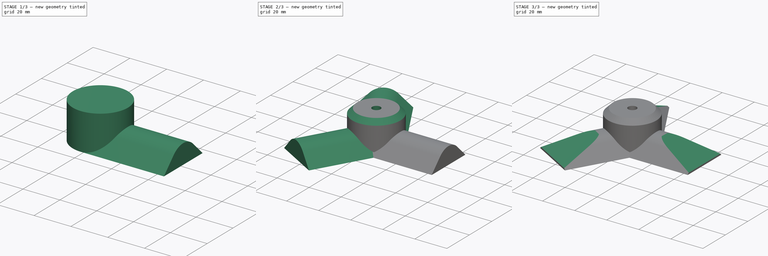
[diagram: build sequence overview — one tinted view per stage of 3, left to right]
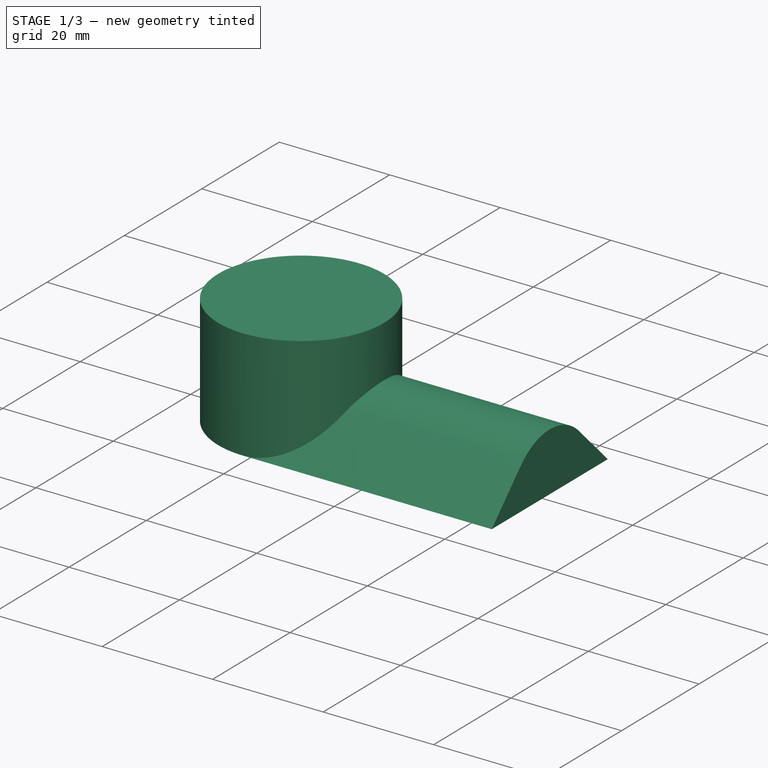
[diagram: stage 1 of 3 — iso view after this stage's code; geometry added in this stage tinted green]
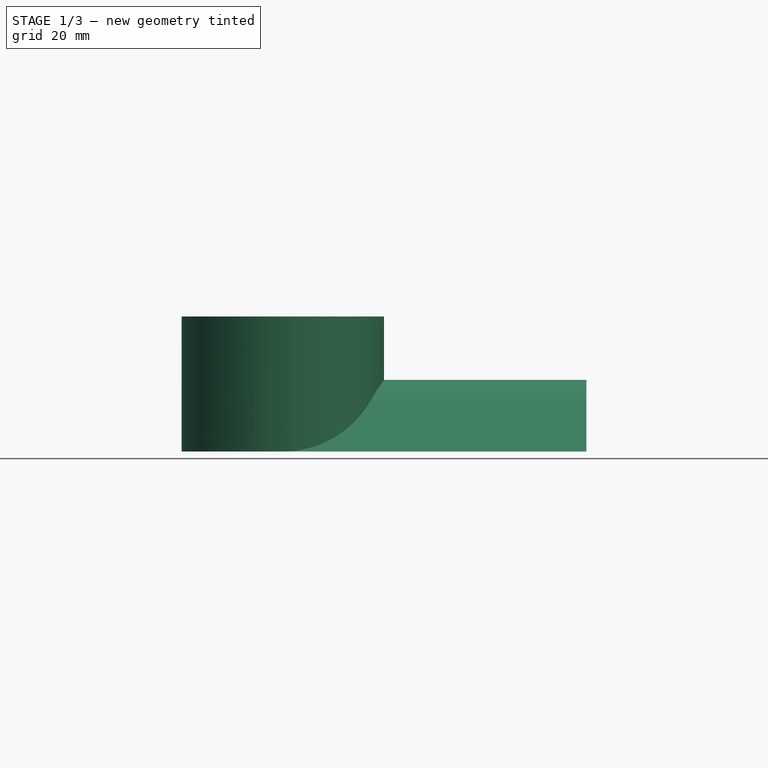
[diagram: stage 1 of 3 — front view after this stage's code; geometry added in this stage tinted green]
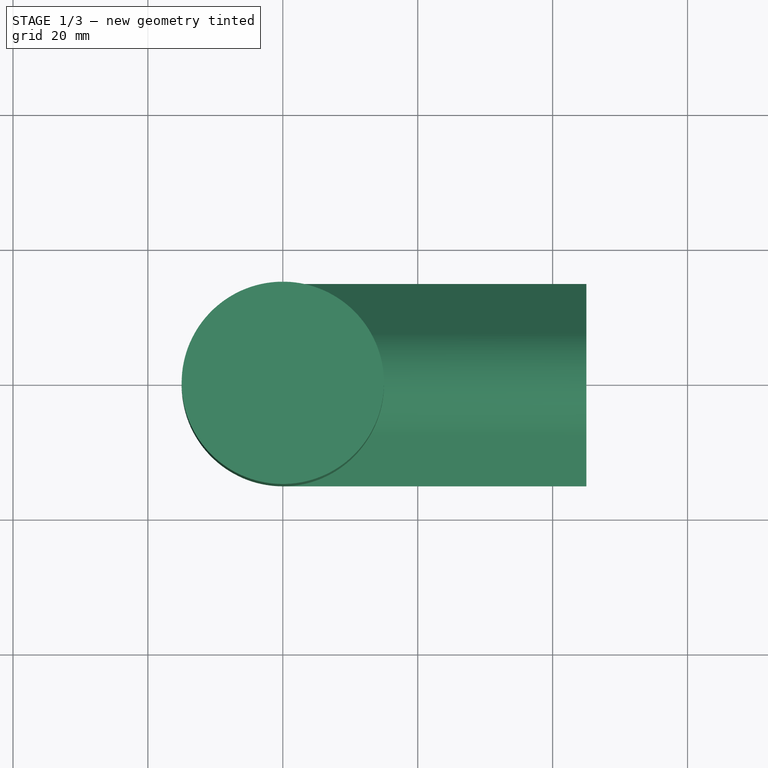
[diagram: stage 1 of 3 — top view after this stage's code; geometry added in this stage tinted green]
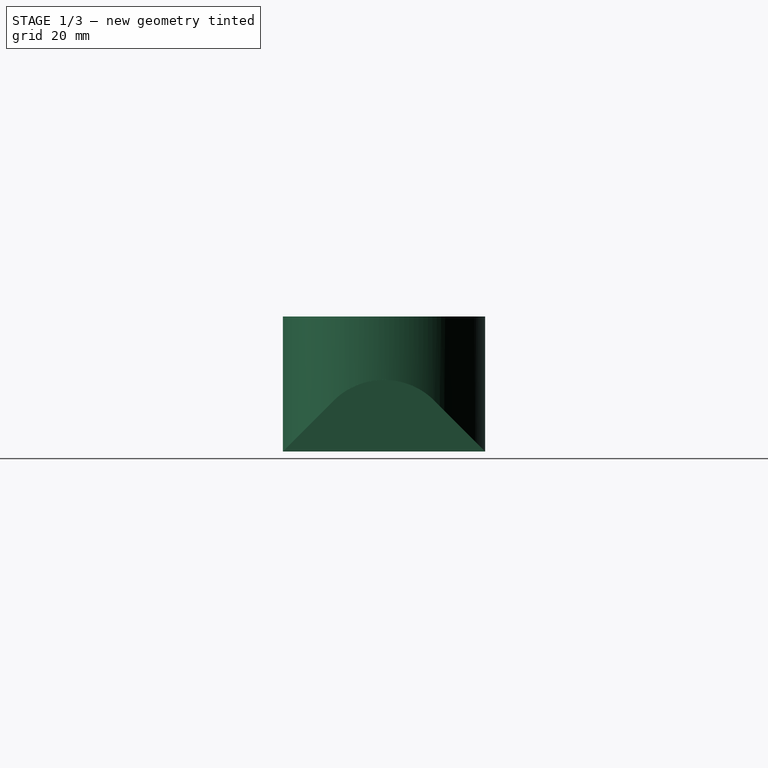
[diagram: stage 1 of 3 — right view after this stage's code; geometry added in this stage tinted green]
FCSTD DOCUMENT  (FreeCAD 0.19R24276 (Git))
Label: pulpropeller
License: All rights reserved
LicenseURL: http://en.wikipedia.org/wiki/All_rights_reserved
objects: TechDraw::DrawProjGroupItem×9, Sketcher::SketchObject×4, PartDesign::Pad×2, PartDesign::PolarPattern×2, PartDesign::Chamfer×1, PartDesign::SubtractiveCylinder×1, PartDesign::Pocket×1, PartDesign::Body×1, TechDraw::DrawSVGTemplate×1, TechDraw::DrawProjGroup×1, TechDraw::DrawPage×1
note: 17 computed .brp shape members not serialized (recipe doc carries the construction recipe); baked Part::Feature solids carry a one-line shape summary decoded from their .brp

FEATURE [Sketcher::SketchObject] Sketch
  FullyConstrained = true
  MapMode = 5
  Support = -> [XY_Plane]
  sketch-geometry (1):
    g0: Circle CenterX=0 CenterY=0 CenterZ=0 NormalX=0 NormalY=0 NormalZ=1 AngleXU=0 Radius=15
  constraints (2):
    c: Radius(g0) = 15
    c: Coincident(g0,g-1)
FEATURE [PartDesign::Pad] Pad
  Direction = (1,1,1)
  Length = 20
  Length2 = 100
  Profile = -> Sketch
  Type = 0
FEATURE [Sketcher::SketchObject] Sketch001
  FullyConstrained = true
  MapMode = 5
  Placement = pos=(0,0,0) rot=(0.57735,0.57735,0.57735;2.0944rad)
  Support = -> [YZ_Plane]
  sketch-geometry (4):
    g0: LineSegment StartX=-15 StartY=0 StartZ=0 EndX=-7.5 EndY=7.5 EndZ=0
    g1: LineSegment StartX=7.5 StartY=7.5 StartZ=0 EndX=15 EndY=0 EndZ=0
    g2: LineSegment StartX=15 StartY=0 StartZ=0 EndX=-15 EndY=0 EndZ=0
    g3: ArcOfCircle CenterX=0 CenterY=0 CenterZ=0 NormalX=0 NormalY=0 NormalZ=1 AngleXU=0 Radius=10.6066 StartAngle=0.785398 EndAngle=2.35619
  constraints (10):
    c: PointOnObject(g0,g-1)
    c: PointOnObject(g1,g-1)
    c: Coincident(g1,g2)
    c: Coincident(g2,g0)
    c: Tangent(g0,g3) = 1.5708
    c: Tangent(g1,g3) = 1.5708
    c: Angle(g2,g0) = 0.785398
    c: Angle(g1,g2) = 0.785398
    c: DistanceX(g2,g2) = 30
    c: Coincident(g3,g-1)
FEATURE [PartDesign::Pad] Pad001
  BaseFeature = -> Pad
  Direction = (1,1,1)
  Length = 45
  Length2 = 100
  Profile = -> Sketch001
  Type = 0
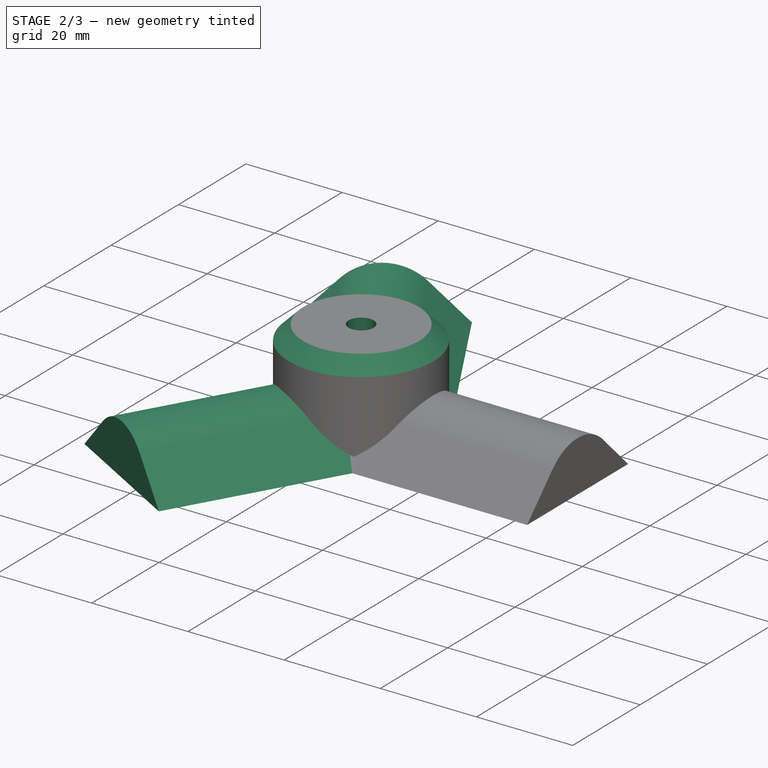
[diagram: stage 2 of 3 — iso view after this stage's code; geometry added in this stage tinted green]
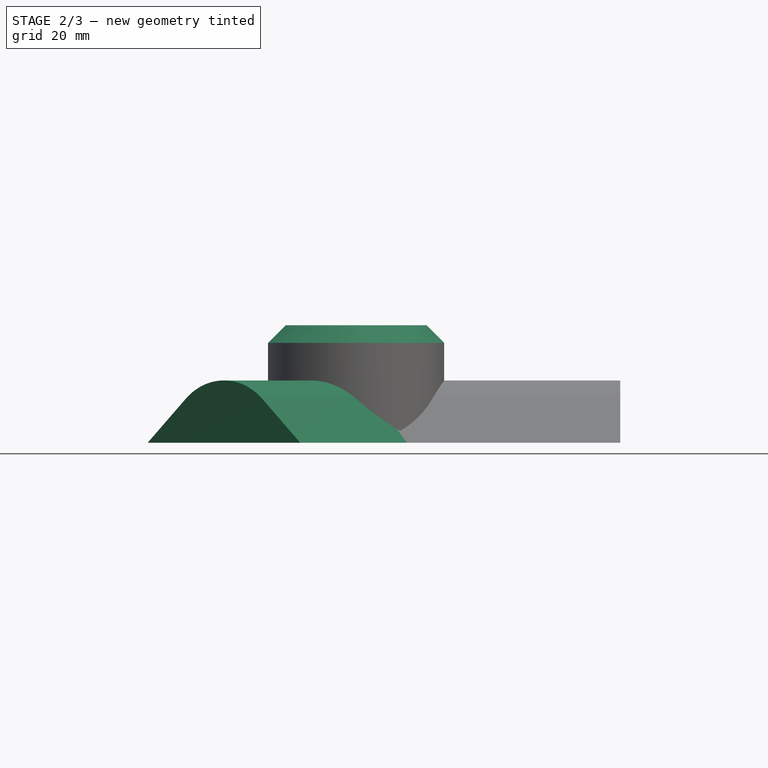
[diagram: stage 2 of 3 — front view after this stage's code; geometry added in this stage tinted green]
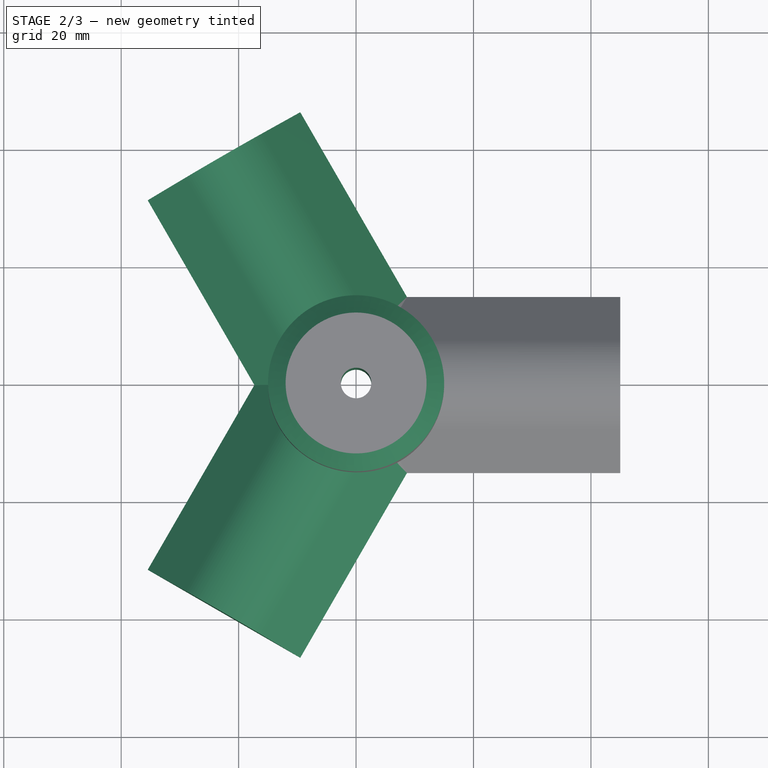
[diagram: stage 2 of 3 — top view after this stage's code; geometry added in this stage tinted green]
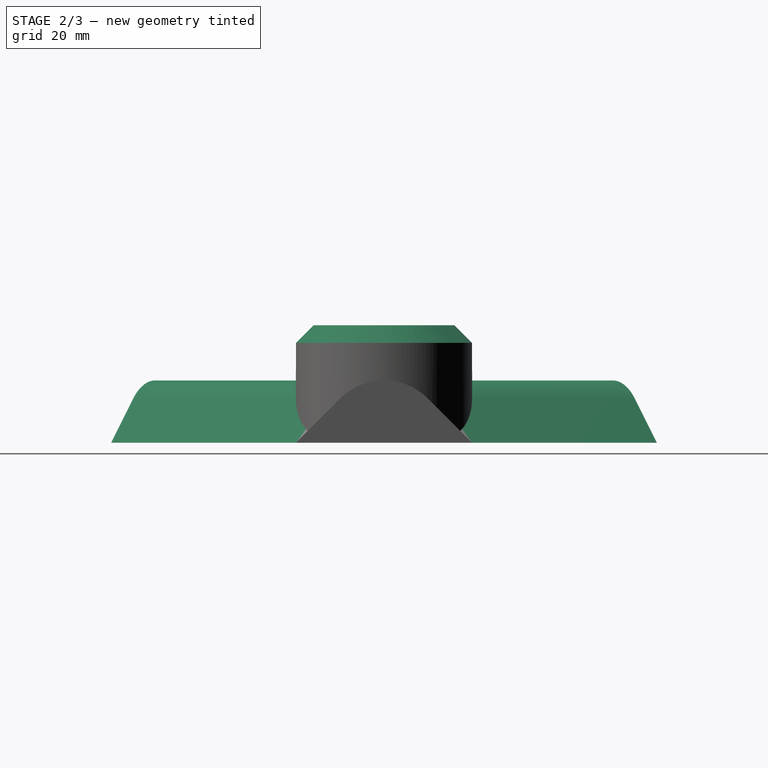
[diagram: stage 2 of 3 — right view after this stage's code; geometry added in this stage tinted green]
FEATURE [PartDesign::PolarPattern] PolarPattern
  Angle = 360
  Axis = -> Z_Axis
  BaseFeature = -> Pad001
  Occurrences = 3
  Originals = -> [Pad001]
  Refine = true
FEATURE [PartDesign::Chamfer] Chamfer
  Angle = 45
  Base = -> PolarPattern [Edge31]
  BaseFeature = -> PolarPattern
  ChamferType = 0
  FlipDirection = false
  Size = 3
  Size2 = 1
  SupportTransform = false
FEATURE [PartDesign::SubtractiveCylinder] Cylinder  label="inner_cilinder"
  Angle = 360
  AttacherType = Attacher::AttachEngine3D
  BaseFeature = -> Chamfer
  Height = 30
  MapMode = 5
  Radius = 2.6
  Support = -> [XY_Plane]
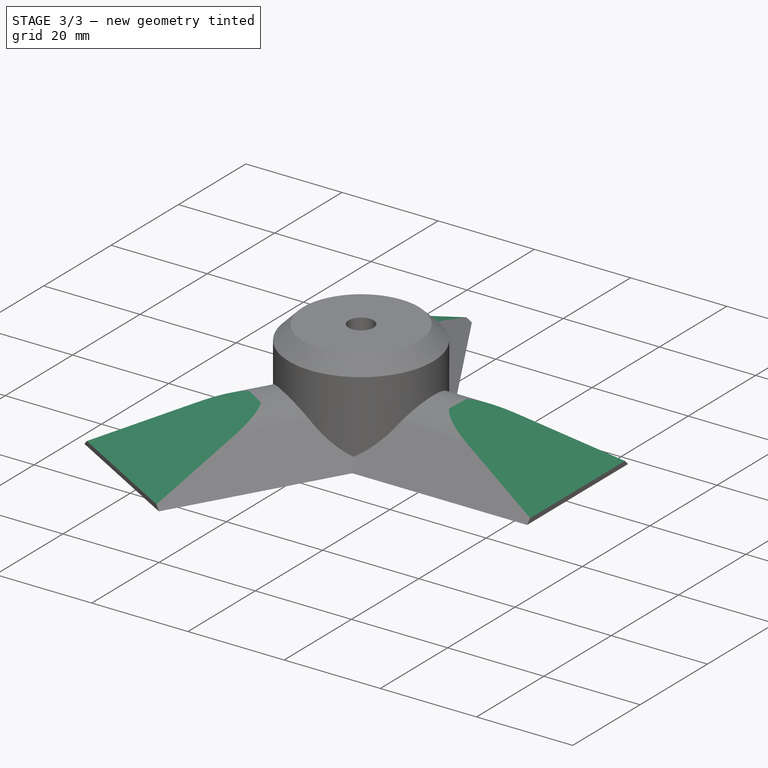
[diagram: stage 3 of 3 — iso view after this stage's code; geometry added in this stage tinted green]
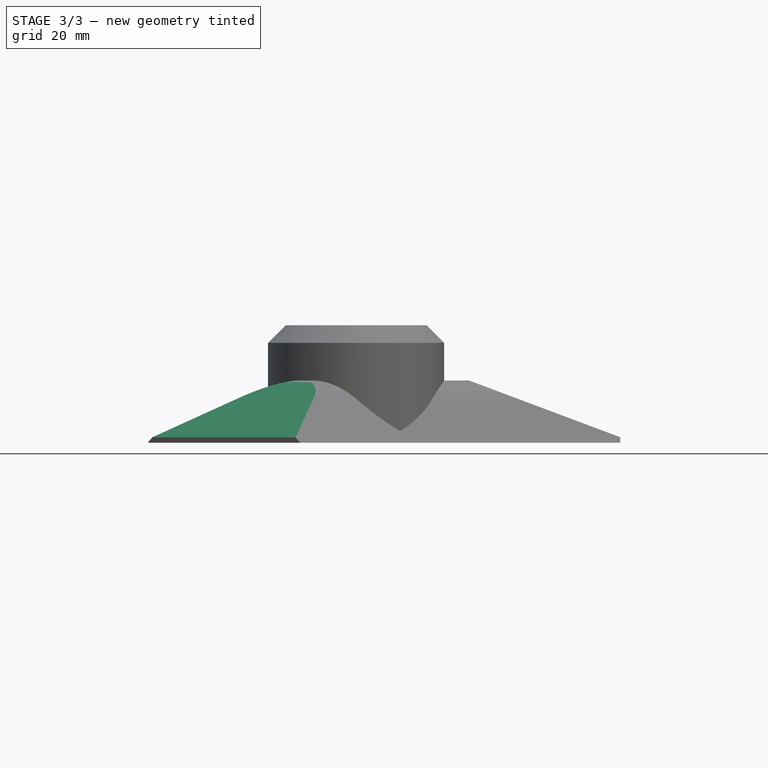
[diagram: stage 3 of 3 — front view after this stage's code; geometry added in this stage tinted green]
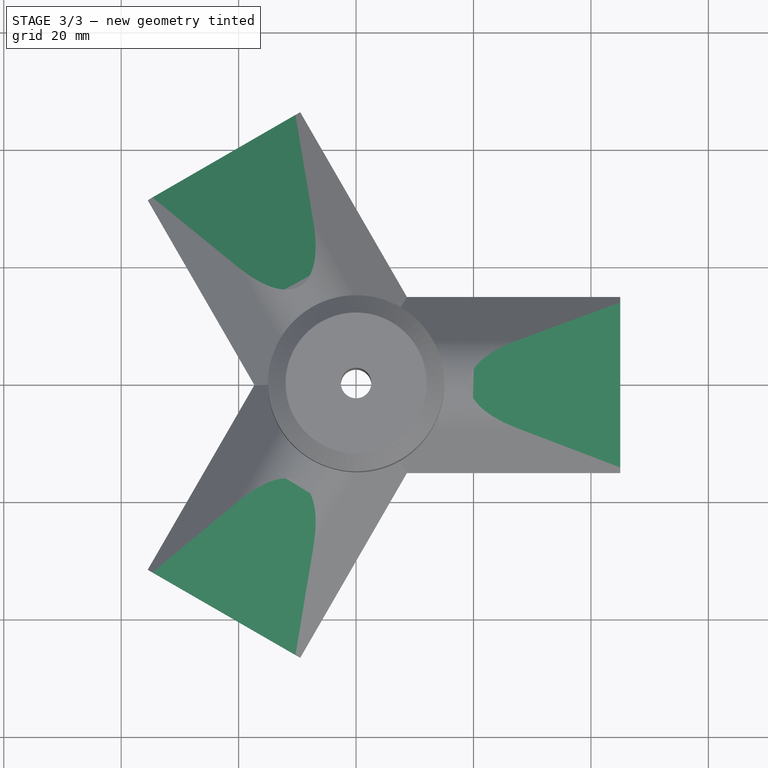
[diagram: stage 3 of 3 — top view after this stage's code; geometry added in this stage tinted green]
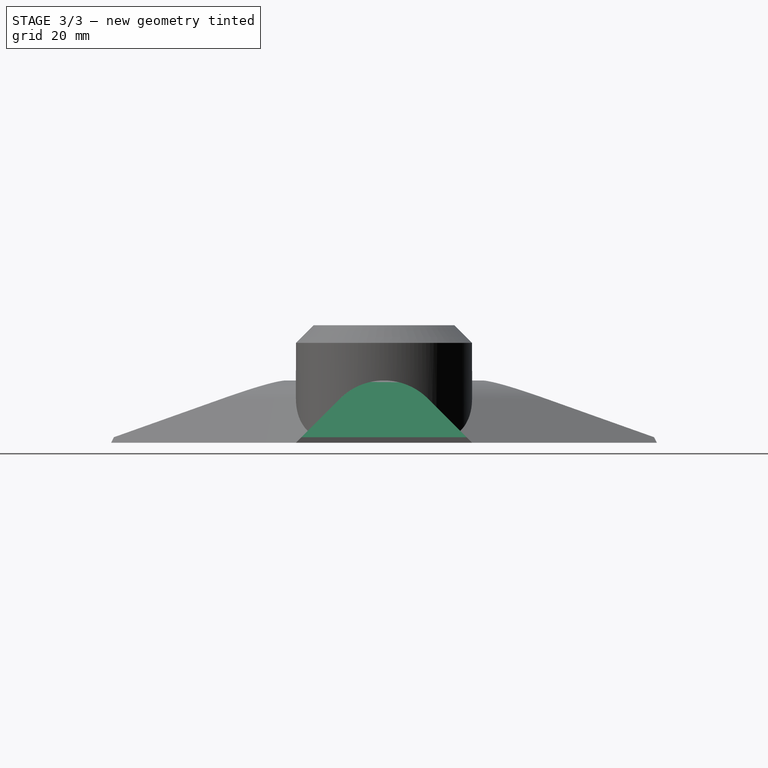
[diagram: stage 3 of 3 — right view after this stage's code; geometry added in this stage tinted green]
FEATURE [Sketcher::SketchObject] Sketch002
  FullyConstrained = true
  MapMode = 5
  Placement = pos=(0,0,0) rot=(1,0,0;1.5708rad)
  Support = -> [XZ_Plane]
  sketch-geometry (3):
    g0: LineSegment StartX=15.5 StartY=12 StartZ=0 EndX=47.5 EndY=0 EndZ=0
    g1: LineSegment StartX=47.5 StartY=0 StartZ=0 EndX=47.5 EndY=12 EndZ=0
    g2: LineSegment StartX=47.5 StartY=12 StartZ=0 EndX=15.5 EndY=12 EndZ=0
  constraints (9):
    c: PointOnObject(g0,g-1)
    c: Coincident(g0,g1)
    c: Vertical(g1)
    c: Coincident(g1,g2)
    c: Horizontal(g2)
    c: DistanceY(g1,g1) = 12
    c: Coincident(g0,g2)
    c: DistanceX(g2,g2) = 32
    c: DistanceX(g-1,g0) = 15.5
FEATURE [PartDesign::Pocket] Pocket
  BaseFeature = -> Cylinder
  Length = 30
  Length2 = 100
  Midplane = true
  Profile = -> Sketch002
  Type = 0
FEATURE [PartDesign::PolarPattern] PolarPattern001
  Angle = 360
  Axis = -> Z_Axis
  BaseFeature = -> Pocket
  Occurrences = 3
  Originals = -> [Pocket]
FEATURE [Sketcher::SketchObject] Sketch003
  FullyConstrained = true
  MapMode = 5
  Support = -> [XY_Plane]
  sketch-geometry (6):
    g0: LineSegment StartX=15.5 StartY=-15 StartZ=0 EndX=37.9553 EndY=-8.98311 EndZ=0
    g1: LineSegment StartX=37.9553 StartY=8.98311 StartZ=0 EndX=15.5 EndY=15 EndZ=0
    g2: LineSegment StartX=15.5 StartY=15 StartZ=0 EndX=55.5 EndY=15 EndZ=0
    g3: LineSegment StartX=55.5 StartY=15 StartZ=0 EndX=55.5 EndY=-15 EndZ=0
    g4: LineSegment StartX=55.5 StartY=-15 StartZ=0 EndX=15.5 EndY=-15 EndZ=0
    g5: ArcOfCircle CenterX=35.5483 CenterY=0 CenterZ=0 NormalX=0 NormalY=0 NormalZ=1 AngleXU=0 Radius=9.3 StartAngle=4.97419 EndAngle=7.59218
  constraints (17):
    c: Coincident(g1,g2)
    c: Horizontal(g2)
    c: Coincident(g2,g3)
    c: Vertical(g3)
    c: Coincident(g3,g4)
    c: Coincident(g4,g0)
    c: Horizontal(g4)
    c: Tangent(g1,g5) = -1.5708
    c: Tangent(g0,g5) = -1.5708
    c: Angle(g1,g2) = 0.261799
    c: Angle(g4,g0) = 0.261799
    c: DistanceY(g3,g3) = 30
    c: Equal(g2,g4)
    c: PointOnObject(g5,g-1)
    c: DistanceX(g2,g2) = 40
    c: Radius(g5) = 9.3
    c: DistanceX(g-1,g1) = 15.5
FEATURE [PartDesign::Body] Body
  Group = -> [Sketch,Pad,Sketch001,Pad001,PolarPattern,Chamfer,Cylinder,Sketch002,Pocket,PolarPattern001,Sketch003]
  Origin = -> Origin
  Tip = -> PolarPattern001
FEATURE [TechDraw::DrawSVGTemplate] Template_PolarPattern001
  Height = 210
  Orientation = 1
  Width = 297
FEATURE [TechDraw::DrawProjGroupItem] ProjItem  label="Front"
  CoarseView = false
  Direction = (0,-1,0)
  Focus = 100
  HardHidden = false
  IsoCount = 0
  IsoHidden = false
  IsoVisible = false
  LockPosition = true
  Perspective = false
  Rotation = 0
  RotationVector = (1,0,0)
  Scale = 0.5
  ScaleType = 2
  SeamHidden = false
  SeamVisible = true
  SmoothHidden = false
  SmoothVisible = true
  Source = -> [PolarPattern001]
  Type = 0
  X = 0
  XDirection = (1,0,0)
  Y = 0
FEATURE [TechDraw::DrawProjGroupItem] ProjItem001  label="Right"
  CoarseView = false
  Direction = (1,-1e-16,0)
  Focus = 100
  HardHidden = false
  IsoCount = 0
  IsoHidden = false
  IsoVisible = false
  LockPosition = false
  Perspective = false
  Rotation = 0
  RotationVector = (1,0,0)
  Scale = 0.5
  ScaleType = 2
  SeamHidden = false
  SeamVisible = true
  SmoothHidden = false
  SmoothVisible = true
  Source = -> [PolarPattern001]
  Type = 2
  X = -61.4711
  XDirection = (1e-16,1,0)
  Y = 0
FEATURE [TechDraw::DrawProjGroupItem] ProjItem002  label="Top"
  CoarseView = false
  Direction = (0,0,1)
  Focus = 100
  HardHidden = false
  IsoCount = 0
  IsoHidden = false
  IsoVisible = false
  LockPosition = false
  Perspective = false
  Rotation = 0
  RotationVector = (1,0,0)
  Scale = 0.5
  ScaleType = 2
  SeamHidden = false
  SeamVisible = true
  SmoothHidden = false
  SmoothVisible = true
  Source = -> [PolarPattern001]
  Type = 4
  X = 0
  XDirection = (1,0,0)
  Y = -61.4711
FEATURE [TechDraw::DrawProjGroupItem] ProjItem003  label="Left"
  CoarseView = false
  Direction = (-1,-1e-16,0)
  Focus = 100
  HardHidden = false
  IsoCount = 0
  IsoHidden = false
  IsoVisible = false
  LockPosition = false
  Perspective = false
  Rotation = 0
  RotationVector = (1,0,0)
  Scale = 0.5
  ScaleType = 2
  SeamHidden = false
  SeamVisible = true
  SmoothHidden = false
  SmoothVisible = true
  Source = -> [PolarPattern001]
  Type = 1
  X = 61.4711
  XDirection = (1e-16,-1,0)
  Y = 0
FEATURE [TechDraw::DrawProjGroupItem] ProjItem004  label="Bottom"
  CoarseView = false
  Direction = (0,0,-1)
  Focus = 100
  HardHidden = false
  IsoCount = 0
  IsoHidden = false
  IsoVisible = false
  LockPosition = false
  Perspective = false
  Rotation = 0
  RotationVector = (1,0,0)
  Scale = 0.5
  ScaleType = 2
  SeamHidden = false
  SeamVisible = true
  SmoothHidden = false
  SmoothVisible = true
  Source = -> [PolarPattern001]
  Type = 5
  X = 0
  XDirection = (1,0,0)
  Y = 61.4711
FEATURE [TechDraw::DrawProjGroupItem] ProjItem005  label="FrontBottomLeft"
  CoarseView = false
  Direction = (-0.57735,-0.57735,-0.57735)
  Focus = 100
  HardHidden = false
  IsoCount = 0
  IsoHidden = false
  IsoVisible = false
  LockPosition = false
  Perspective = false
  Rotation = 0
  RotationVector = (1,0,0)
  Scale = 0.5
  ScaleType = 2
  SeamHidden = false
  SeamVisible = true
  SmoothHidden = false
  SmoothVisible = true
  Source = -> [PolarPattern001]
  Type = 8
  X = 60.6794
  XDirection = (0.707107,-0.707107,0)
  Y = 51.3499
FEATURE [TechDraw::DrawProjGroupItem] ProjItem006  label="FrontTopRight"
  CoarseView = false
  Direction = (0.57735,-0.57735,0.57735)
  Focus = 100
  HardHidden = false
  IsoCount = 0
  IsoHidden = false
  IsoVisible = false
  LockPosition = false
  Perspective = false
  Rotation = 0
  RotationVector = (1,0,0)
  Scale = 0.5
  ScaleType = 2
  SeamHidden = false
  SeamVisible = true
  SmoothHidden = false
  SmoothVisible = true
  Source = -> [PolarPattern001]
  Type = 7
  X = -60.6794
  XDirection = (0.707107,0.707107,0)
  Y = -71.5924
FEATURE [TechDraw::DrawProjGroupItem] ProjItem007  label="FrontTopLeft"
  CoarseView = false
  Direction = (-0.57735,-0.57735,0.57735)
  Focus = 100
  HardHidden = false
  IsoCount = 0
  IsoHidden = false
  IsoVisible = false
  LockPosition = false
  Perspective = false
  Rotation = 0
  RotationVector = (1,0,0)
  Scale = 0.5
  ScaleType = 2
  SeamHidden = false
  SeamVisible = true
  SmoothHidden = false
  SmoothVisible = true
  Source = -> [PolarPattern001]
  Type = 6
  X = 60.6794
  XDirection = (0.707107,-0.707107,0)
  Y = -71.6531
FEATURE [TechDraw::DrawProjGroupItem] ProjItem008  label="FrontBottomRight"
  CoarseView = false
  Direction = (0.57735,-0.57735,-0.57735)
  Focus = 100
  HardHidden = false
  IsoCount = 0
  IsoHidden = false
  IsoVisible = false
  LockPosition = false
  Perspective = false
  Rotation = 0
  RotationVector = (1,0,0)
  Scale = 0.5
  ScaleType = 2
  SeamHidden = false
  SeamVisible = true
  SmoothHidden = false
  SmoothVisible = true
  Source = -> [PolarPattern001]
  Type = 9
  X = -60.6794
  XDirection = (0.707107,0.707107,0)
  Y = 51.2892
FEATURE [TechDraw::DrawProjGroup] ProjGroup_PolarPattern001
  Anchor = -> ProjItem
  AutoDistribute = true
  LockPosition = false
  ProjectionType = 0
  Rotation = 0
  Scale = 0.5
  ScaleType = 1
  Source = -> [PolarPattern001]
  Views = -> [ProjItem,ProjItem001,ProjItem002,ProjItem003,ProjItem004,ProjItem005,ProjItem006,ProjItem007,ProjItem008]
  X = 148.5
  Y = 105
  spacingX = 15
  spacingY = 15
FEATURE [TechDraw::DrawPage] Page_PolarPattern001
  KeepUpdated = true
  NextBalloonIndex = 1
  ProjectionType = 0
  Template = -> Template_PolarPattern001
  Views = -> [ProjGroup_PolarPattern001]
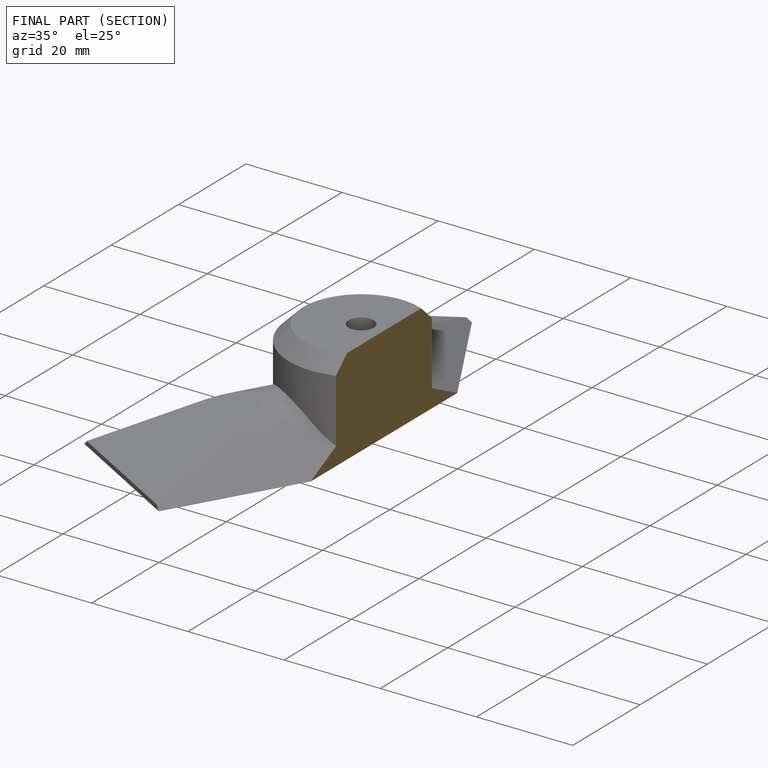
[diagram: finished part — half-section view (interior)]
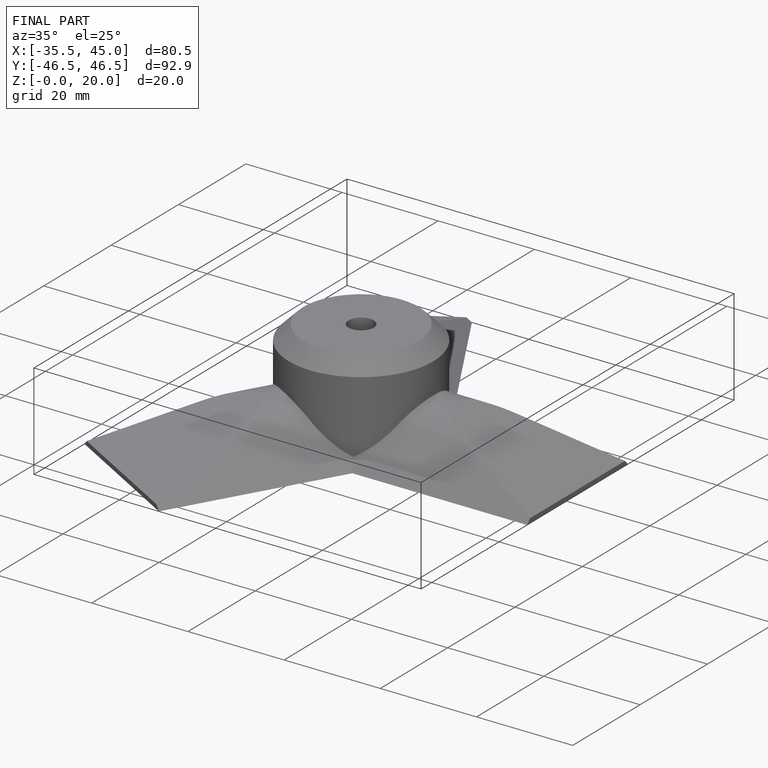
[diagram: finished part — iso view with bounding-box wireframe]
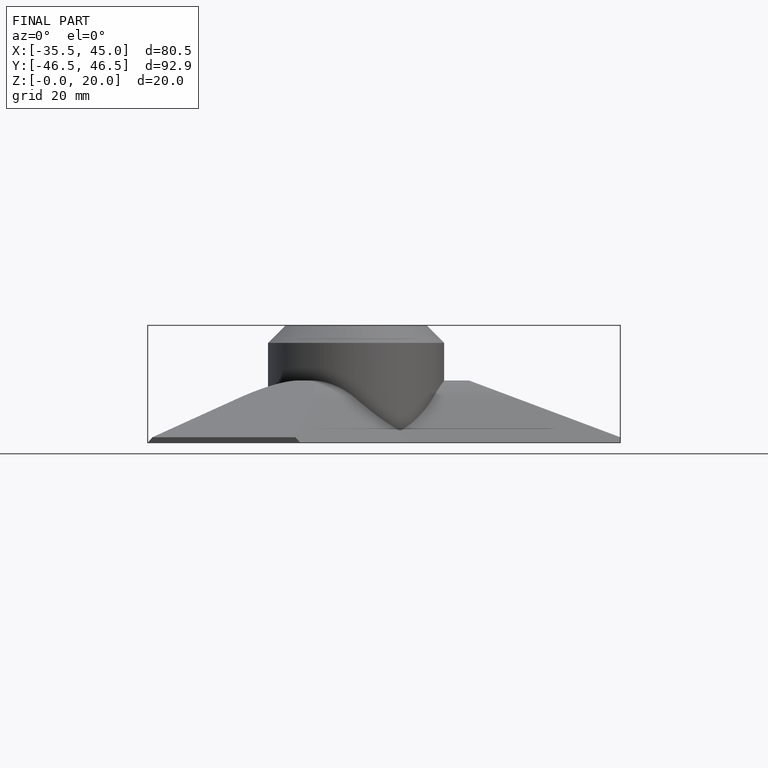
[diagram: finished part — front view with bounding-box wireframe]
